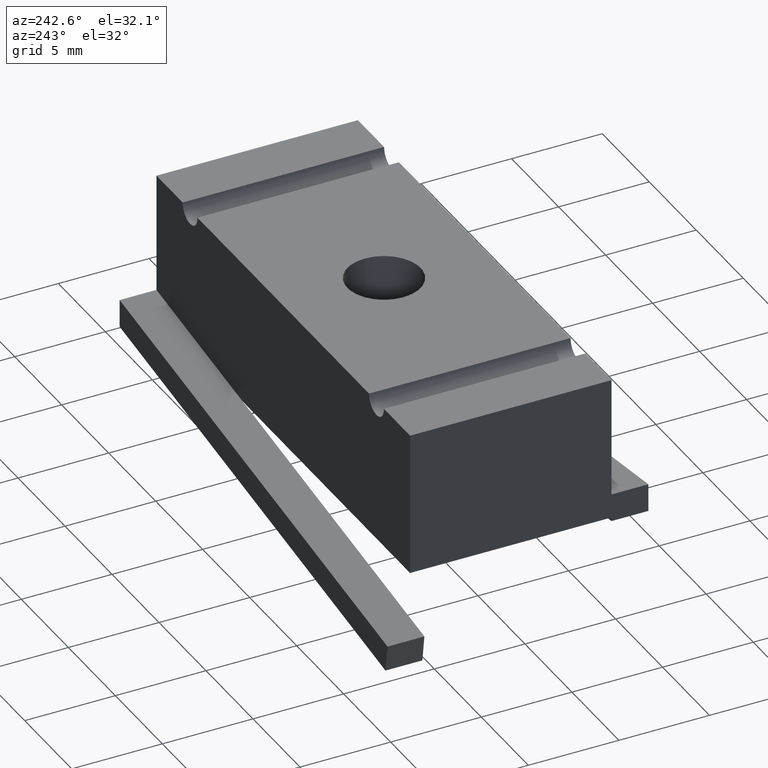
[diagram: clean part render]
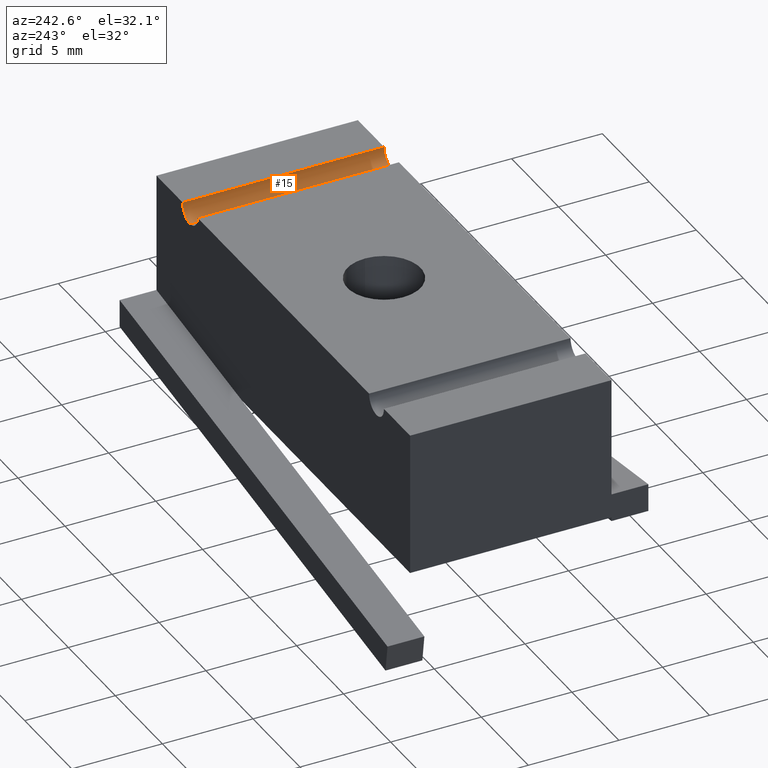
[diagram: same view with one face highlighted and labeled with its STEP entity id]
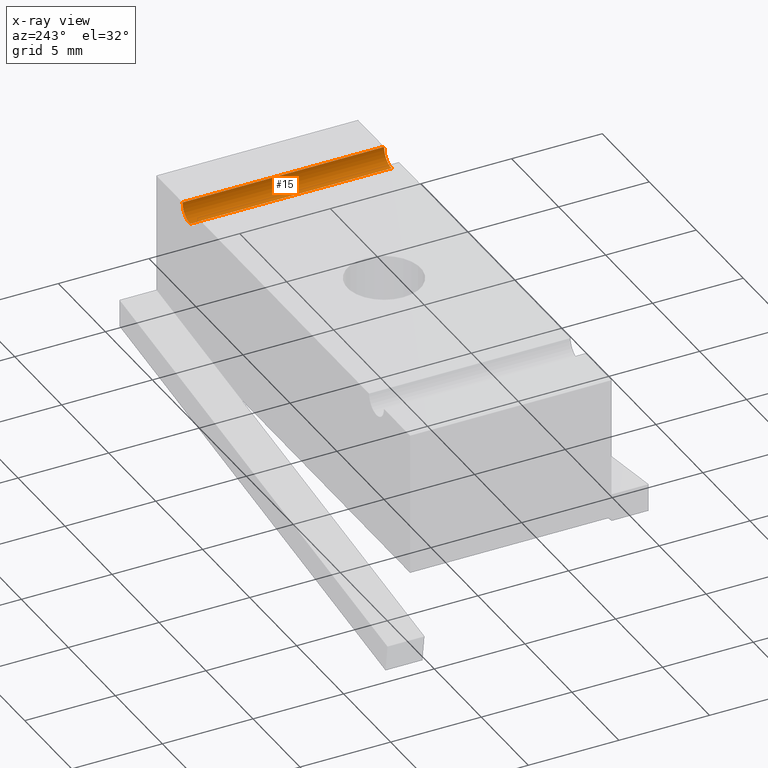
[diagram: x-ray of the same camera — body ghosted, the highlighted face saturated]
A machine part, auxiliary view. The second image highlights one B-rep face of the part: STEP entity #15.
The next image is the same camera in x-ray: the body ghosted, the highlighted face saturated — about 0% of this face is hidden behind the body in this view.
In plain terms, the highlighted cylindrical surface (edge-blend (fillet) strip) has radius 0.7937 mm, axis along (-0, -1, -0).
Its self-contained STEP definition (entity closure, byte-faithful):
#15 = ADVANCED_FACE ( 'NONE', ( #42 ), #52, .F. ) ;
#42 = FACE_OUTER_BOUND ( 'NONE', #607, .T. ) ;
#52 = CYLINDRICAL_SURFACE ( 'NONE', #760, 0.03124999999999997900 ) ;
#64 = ORIENTED_EDGE ( 'NONE', *, *, #700, .T. ) ;
#70 = ORIENTED_EDGE ( 'NONE', *, *, #680, .T. ) ;
#76 = ORIENTED_EDGE ( 'NONE', *, *, #671, .T. ) ;
#87 = ORIENTED_EDGE ( 'NONE', *, *, #709, .T. ) ;
#248 = VERTEX_POINT ( 'NONE', #379 ) ;
#249 = VERTEX_POINT ( 'NONE', #381 ) ;
#250 = VERTEX_POINT ( 'NONE', #376 ) ;
#278 = VERTEX_POINT ( 'NONE', #406 ) ;
#326 = DIRECTION ( 'NONE',  ( 0.0000000000000000000, 0.0000000000000000000, -1.000000000000000000 ) ) ;
#332 = CARTESIAN_POINT ( 'NONE',  ( 0.3903750000000000800, 0.2187509842519684800, 0.0000000000000000000 ) ) ;
#333 = DIRECTION ( 'NONE',  ( -0.0000000000000000000, -1.000000000000000000, -0.0000000000000000000 ) ) ;
#376 = CARTESIAN_POINT ( 'NONE',  ( 0.3903750000000000800, 0.2187500000000000300, -0.03124999999999997900 ) ) ;
#379 = CARTESIAN_POINT ( 'NONE',  ( 0.3903750000000000800, -0.2187499999999999400, -0.03124999999999997900 ) ) ;
#381 = CARTESIAN_POINT ( 'NONE',  ( 0.4216249999999999700, -0.2187499999999999400, 0.0000000000000000000 ) ) ;
#406 = CARTESIAN_POINT ( 'NONE',  ( 0.4216250000000000300, 0.2187500000000000300, 0.0000000000000000000 ) ) ;
#463 = CARTESIAN_POINT ( 'NONE',  ( 0.4216250000000000300, 0.2187509842519684800, 0.0000000000000000000 ) ) ;
#468 = DIRECTION ( 'NONE',  ( 0.0000000000000000000, 1.000000000000000000, 0.0000000000000000000 ) ) ;
#483 = CARTESIAN_POINT ( 'NONE',  ( 0.3903750000000000800, 0.2187509842519684800, -0.03124999999999997900 ) ) ;
#484 = DIRECTION ( 'NONE',  ( -0.0000000000000000000, -1.000000000000000000, -0.0000000000000000000 ) ) ;
#518 = CARTESIAN_POINT ( 'NONE',  ( 0.3903750000000000800, 0.2187500000000000300, 0.0000000000000000000 ) ) ;
#526 = CARTESIAN_POINT ( 'NONE',  ( 0.3903750000000000800, -0.2187499999999999400, 0.0000000000000000000 ) ) ;
#527 = DIRECTION ( 'NONE',  ( 0.0000000000000000000, 1.000000000000000000, 0.0000000000000000000 ) ) ;
#528 = DIRECTION ( 'NONE',  ( 0.0000000000000000000, 0.0000000000000000000, 1.000000000000000000 ) ) ;
#540 = DIRECTION ( 'NONE',  ( 0.0000000000000000000, -1.000000000000000000, 0.0000000000000000000 ) ) ;
#541 = DIRECTION ( 'NONE',  ( 0.0000000000000000000, 0.0000000000000000000, -1.000000000000000000 ) ) ;
#590 = VECTOR ( 'NONE', #468, 39.37007874015748100 ) ;
#597 = LINE ( 'NONE', #483, #598 ) ;
#598 = VECTOR ( 'NONE', #484, 39.37007874015748100 ) ;
#607 = EDGE_LOOP ( 'NONE', ( #64, #70, #87, #76 ) ) ;
#632 = CIRCLE ( 'NONE', #763, 0.03124999999999997900 ) ;
#643 = CIRCLE ( 'NONE', #759, 0.03124999999999997900 ) ;
#671 = EDGE_CURVE ( 'NONE', #249, #278, #772, .T. ) ;
#680 = EDGE_CURVE ( 'NONE', #250, #248, #597, .T. ) ;
#700 = EDGE_CURVE ( 'NONE', #278, #250, #632, .T. ) ;
#709 = EDGE_CURVE ( 'NONE', #248, #249, #643, .T. ) ;
#759 = AXIS2_PLACEMENT_3D ( 'NONE', #526, #540, #541 ) ;
#760 = AXIS2_PLACEMENT_3D ( 'NONE', #332, #333, #326 ) ;
#763 = AXIS2_PLACEMENT_3D ( 'NONE', #518, #527, #528 ) ;
#772 = LINE ( 'NONE', #463, #590 ) ;